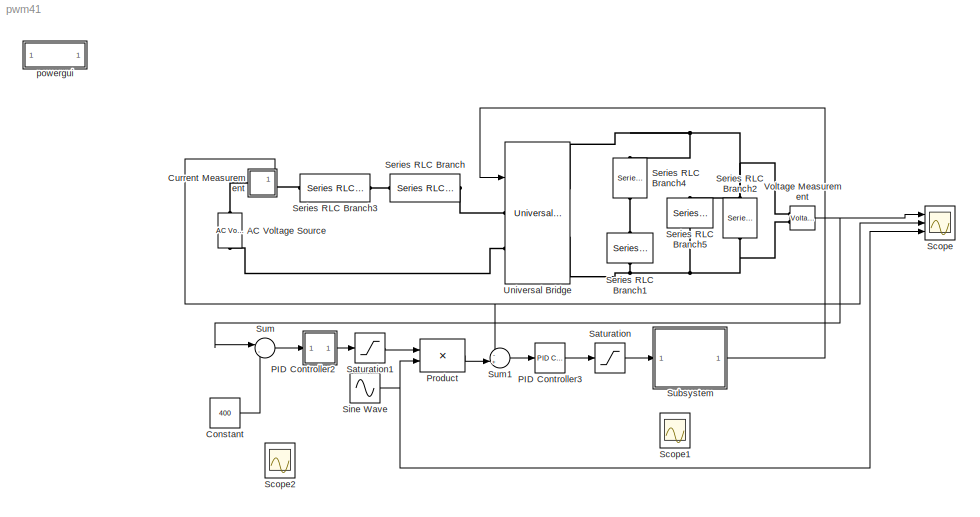
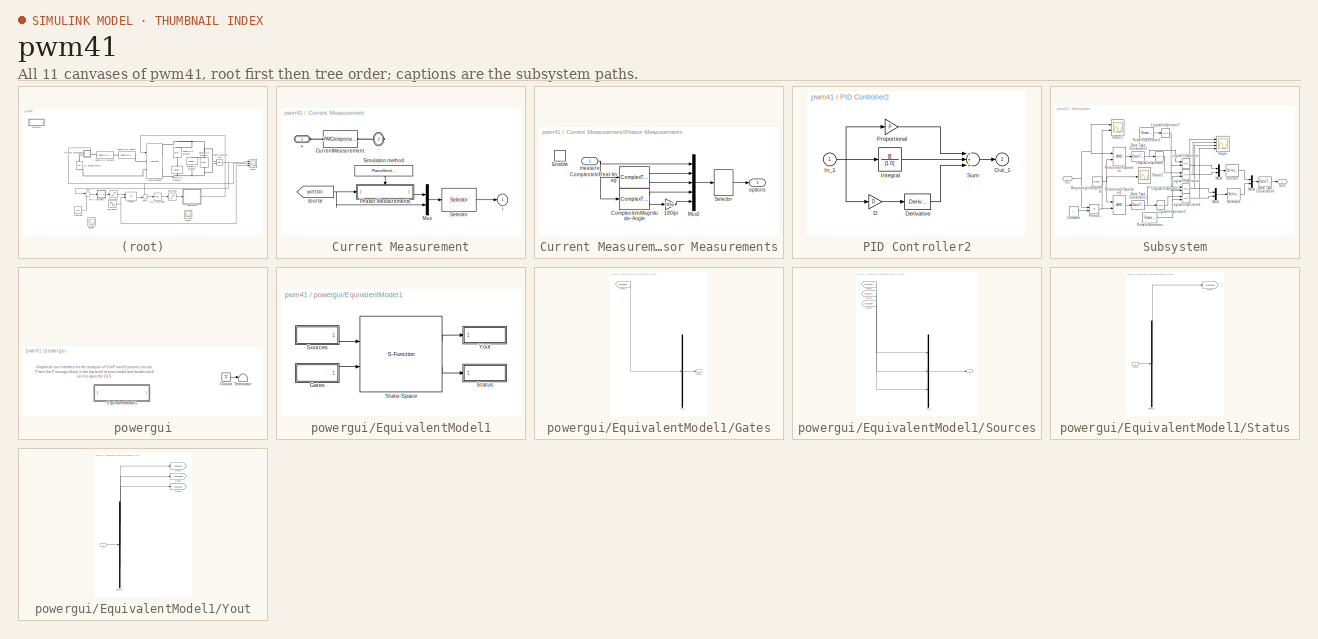
[diagram: thumbnail index - all 11 canvases of the model, root first then tree order]
MODEL pwm41
KIND model
BLOCK [Reference] AC Voltage Source  REF=powerlib/Electrical\nSources/AC Voltage Source
  Amplitude = 311.08
  AttributesFormatString = \\n
  Description = source block
  Frequency = 50
  Measurements = None
  Phase = 0
  Ports = [0, 0, 0, 0, 0, 1, 1]
  SampleTime = 0
  ShowPortLabels = on
  SourceBlock = powerlib/Electrical\nSources/AC Voltage Source
  SourceType = AC Voltage Source
BLOCK [Constant] Constant
  Value = 400
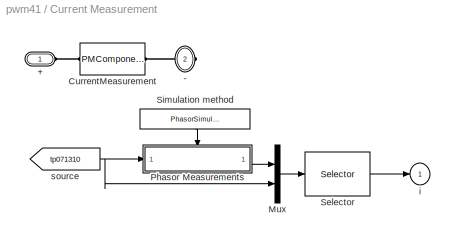
BLOCK [SubSystem] Current Measurement
  AncestorBlock = powerlib/Measurements/Current Measurement
  AttributesFormatString = \\n
  CloseFcn = powericon('psbloadfunction',gcbh,'CloseFcn','');
  CopyFcn = powericon('psbloadfunction',gcbh,'Measurement Block','VerifyPhasor');
  InitFcn = powericon('psbloadfunction',gcbh,'InitFcnOfSPSBlocks','Measurement Block');
  LoadFcn = powericon('psbloadfunction',gcbh,'Measurement Block','');
  MaskCallbackString = ||
  MaskDescription = Ideal current measurement.
  MaskEnableString = off,off,off
  MaskHelp = web(psbhelp);
  MaskHideContents = off
  MaskIconFrame = on
  MaskIconOpaque = off
  MaskIconRotate = port
  MaskIconUnits = autoscale
  MaskInitialization = switch OutputType\ncase 1\n    OutputSelection = 1;\n    NormalMode = 2;\n    PhasorMode = 1;\ncase 2\n    OutputSelection =[2,3];\n    NormalMode = 3;\n    PhasorMode = [1,2];\ncase 3\n    OutputSelection =[4,5];\n    NormalMode = 3;\n    PhasorMode = [1,2];\ncase 4\n    OutputSelection =[4];\n    NormalMode = 2;\n    PhasorMode = 1;\nend\n%\nif PhasorSimulation\n    SelectionMode = PhasorMode;\n...<+42ch>
  MaskPromptString = Phasor simulation|Output signal :|Equivalent circuit
  MaskSelfModifiable = on
  MaskStyleString = checkbox,popup(Complex|Real-Imag|Magnitude-Angle|Magnitude),edit
  MaskTabNameString = ,,
  MaskToolTipString = on,on,on
  MaskTunableValueString = on,on,on
  MaskType = Current Measurement
  MaskValueString = off|Magnitude|0
  MaskVarAliasString = ,,
  MaskVariables = PhasorSimulation=@1;OutputType=@2;PSBequivalent=@3;
  MaskVisibilityString = off,on,off
  MinAlgLoopOccurrences = off
  Ports = [0, 1, 0, 0, 0, 1, 1]
  PreSaveFcn = powericon('psbloadfunction',gcbh,'ModelCloseFcn','');
  RTWSystemCode = Auto
  Tag = PoWeRsYsTeMmEaSuReMeNt
  TreatAsAtomicUnit = off
BLOCK [PMIOPort] Current Measurement/+
  Port = 1
  Side = Left
BLOCK [PMIOPort] Current Measurement/-
  Port = 2
  Side = Right
BLOCK [PMComponent] Current Measurement/CurrentMeasurement
  LConnTagsString = a
  LeftPortType = p1
  MaskIconFrame = on
  MaskIconOpaque = on
  MaskIconRotate = none
  MaskIconUnits = autoscale
  MaskType = InnerPowersysBlock
  PhysicalDomain = powersysdomain
  Ports = [0, 0, 0, 0, 0, 1, 1]
  RConnTagsString = __new0
  RightPortType = p1
BLOCK [Mux] Current Measurement/Mux
  DisplayOption = bar
  Inputs = 2
  Ports = [2, 1]
BLOCK [SubSystem] Current Measurement/Phasor Measurements
  MaskHideContents = off
  MinAlgLoopOccurrences = off
  Ports = [1, 1, 1]
  RTWSystemCode = Auto
  TreatAsAtomicUnit = on
BLOCK [Gain] Current Measurement/Phasor Measurements/180//pi
  Gain = 180/pi
BLOCK [ComplexToMagnitudeAngle] Current Measurement/Phasor Measurements/Complex to\nMagnitude-Angle
  Output = Magnitude and angle
  Ports = [1, 2]
BLOCK [ComplexToRealImag] Current Measurement/Phasor Measurements/Complex to\nReal-Imag
  Output = Real and imag
  Ports = [1, 2]
BLOCK [EnablePort] Current Measurement/Phasor Measurements/Enable
  Ports = []
BLOCK [Mux] Current Measurement/Phasor Measurements/Mux2
  DisplayOption = bar
  Inputs = 5
  Ports = [5, 1]
BLOCK [Selector] Current Measurement/Phasor Measurements/Selector
  Elements = OutputSelection
  InputPortWidth = 5
  Ports = [1, 1]
BLOCK [Inport] Current Measurement/Phasor Measurements/measure
  IconDisplay = Port number
BLOCK [Outport] Current Measurement/Phasor Measurements/options
  BusOutputAsStruct = off
  IconDisplay = Port number
  InitialOutput = 0
BLOCK [Selector] Current Measurement/Selector
  Elements = SelectionMode
  InputPortWidth = length(OutputSelection)+1
  Ports = [1, 1]
BLOCK [Constant] Current Measurement/Simulation method
  Value = PhasorSimulation
BLOCK [Outport] Current Measurement/i
  BusOutputAsStruct = off
  IconDisplay = Port number
  InitialOutput = 0
BLOCK [From] Current Measurement/source
  GotoTag = tp071310
BLOCK [SubSystem] PID Controller2
  AncestorBlock = simulink_extras/Additional\nLinear/PID Controller
  MaskCallbackString = ||
  MaskDescription = Enter expressions for proportional, integral, and derivative terms.\nP+I/s+Ds
  MaskDisplay = disp('PID')
  MaskEnableString = on,on,on
  MaskHelp = This block implements a PID controller where parameters are entered for the Proportional, Integral and Derivative terms. Unmask this block to see how it works. The derivative term is implemented using a true derivative block.
  MaskHideContents = off
  MaskIconFrame = on
  MaskIconOpaque = on
  MaskIconRotate = none
  MaskIconUnits = autoscale
  MaskPromptString = Proportional:|Integral:|Derivative:
  MaskStyleString = edit,edit,edit
  MaskTabNameString = ,,
  MaskToolTipString = on,on,on
  MaskTunableValueString = on,on,on
  MaskType = PID Controller
  MaskValueString = 12|1e-3|0
  MaskVarAliasString = ,,
  MaskVariables = P=@1;I=@2;D=@3;
  MaskVisibilityString = on,on,on
  MinAlgLoopOccurrences = off
  Ports = [1, 1]
  RTWSystemCode = Auto
  TreatAsAtomicUnit = off
BLOCK [Gain] PID Controller2/D
  Gain = D
BLOCK [Derivative] PID Controller2/Derivative
BLOCK [Inport] PID Controller2/In_1
  IconDisplay = Port number
BLOCK [TransferFcn] PID Controller2/Integral
  Denominator = [1 0]
  Numerator = [I]
BLOCK [Outport] PID Controller2/Out_1
  BusOutputAsStruct = off
  IconDisplay = Port number
  InitialOutput = 0
BLOCK [Gain] PID Controller2/Proportional
  Gain = P
BLOCK [Sum] PID Controller2/Sum
  Inputs = +++
  Ports = [3, 1]
BLOCK [Reference] PID Controller3  REF=simulink_extras/Additional\nLinear/PID Controller
  D = 0
  I = 1333
  P = 267
  Ports = [1, 1]
  ShowPortLabels = on
  SourceBlock = simulink_extras/Additional\nLinear/PID Controller
  SourceType = PID Controller
BLOCK [Product] Product
  InputSameDT = off
  Ports = [2, 1]
  RndMeth = Floor
BLOCK [Saturate] Saturation
  LowerLimit = -0.99
  UpperLimit = 0.99
BLOCK [Saturate] Saturation1
  LowerLimit = -100
  UpperLimit = 100
BLOCK [Scope] Scope
  DataFormat = StructureWithTime
  Floating = off
  LimitDataPoints = off
  NumInputPorts = 3
  Ports = [3]
  SampleTime = 0
  YMax = 172.5~4~1
  YMin = 168.5~-9~0.3
  ZoomMode = xonly
BLOCK [Scope] Scope1
  DataFormat = StructureWithTime
  Floating = off
  LimitDataPoints = off
  NumInputPorts = 2
  Ports = [2]
  SampleTime = 0
  SaveName = ScopeData3
  YMax = 1300~110
  YMin = -700~-110
BLOCK [Scope] Scope2
  DataFormat = StructureWithTime
  Floating = off
  LimitDataPoints = off
  NumInputPorts = 2
  Ports = [2]
  SampleTime = 0
  SaveName = ScopeData4
  YMax = 275~375
  YMin = 25~125
BLOCK [Reference] Series RLC Branch  REF=powerlib/Elements/Series RLC Branch
  BranchType = L
  Capacitance = []
  Inductance = 40e-3
  InitialCurrent = 0
  InitialVoltage = 0
  LConnTagsString = __new0
  LeftPortType = p1
  Measurements = None
  PhysicalDomain = powersysdomain
  Ports = [0, 0, 0, 0, 0, 1, 1]
  RConnTagsString = __new0
  Resistance = []
  RightPortType = p1
  SetiL0 = off
  Setx0 = off
  SourceBlock = powerlib/Elements/Series RLC Branch
  SourceType = Series RLC Branch
  SubClassName = unknown
BLOCK [Reference] Series RLC Branch1  REF=powerlib/Elements/Series RLC Branch
  BranchType = C
  Capacitance = 1000e-6
  Inductance = []
  InitialCurrent = 0
  InitialVoltage = 0
  LConnTagsString = __new0
  LeftPortType = p1
  Measurements = None
  PhysicalDomain = powersysdomain
  Ports = [0, 0, 0, 0, 0, 1, 1]
  RConnTagsString = __new0
  Resistance = []
  RightPortType = p1
  SetiL0 = off
  Setx0 = off
  SourceBlock = powerlib/Elements/Series RLC Branch
  SourceType = Series RLC Branch
  SubClassName = unknown
BLOCK [Reference] Series RLC Branch2  REF=powerlib/Elements/Series RLC Branch
  BranchType = R
  Capacitance = []
  Inductance = 0.005
  InitialCurrent = 0
  InitialVoltage = 0
  LConnTagsString = __new0
  LeftPortType = p1
  Measurements = None
  PhysicalDomain = powersysdomain
  Ports = [0, 0, 0, 0, 0, 1, 1]
  RConnTagsString = __new0
  Resistance = 100
  RightPortType = p1
  SetiL0 = off
  Setx0 = off
  SourceBlock = powerlib/Elements/Series RLC Branch
  SourceType = Series RLC Branch
  SubClassName = unknown
BLOCK [Reference] Series RLC Branch3  REF=powerlib/Elements/Series RLC Branch
  BranchType = R
  Capacitance = []
  Inductance = 0.005
  InitialCurrent = 0
  InitialVoltage = 0
  LConnTagsString = __new0
  LeftPortType = p1
  Measurements = None
  PhysicalDomain = powersysdomain
  Ports = [0, 0, 0, 0, 0, 1, 1]
  RConnTagsString = __new0
  Resistance = 0.2
  RightPortType = p1
  SetiL0 = off
  Setx0 = off
  SourceBlock = powerlib/Elements/Series RLC Branch
  SourceType = Series RLC Branch
  SubClassName = unknown
BLOCK [Reference] Series RLC Branch4  REF=powerlib/Elements/Series RLC Branch
  BranchType = L
  Capacitance = []
  Inductance = 2.5e-3
  InitialCurrent = 0
  InitialVoltage = 0
  LConnTagsString = __new0
  LeftPortType = p1
  Measurements = None
  PhysicalDomain = powersysdomain
  Ports = [0, 0, 0, 0, 0, 1, 1]
  RConnTagsString = __new0
  Resistance = 32.8
  RightPortType = p1
  SetiL0 = off
  Setx0 = off
  SourceBlock = powerlib/Elements/Series RLC Branch
  SourceType = Series RLC Branch
  SubClassName = unknown
BLOCK [Reference] Series RLC Branch5  REF=powerlib/Elements/Series RLC Branch
  BranchType = C
  Capacitance = 3000e-6
  Inductance = []
  InitialCurrent = 0
  InitialVoltage = 0
  LConnTagsString = __new0
  LeftPortType = p1
  Measurements = None
  PhysicalDomain = powersysdomain
  Ports = [0, 0, 0, 0, 0, 1, 1]
  RConnTagsString = __new0
  Resistance = []
  RightPortType = p1
  SetiL0 = off
  Setx0 = off
  SourceBlock = powerlib/Elements/Series RLC Branch
  SourceType = Series RLC Branch
  SubClassName = unknown
BLOCK [Sin] Sine Wave
  Frequency = 2*pi*50
  Ports = [0, 1]
  SampleTime = 0
  SineType = Time based
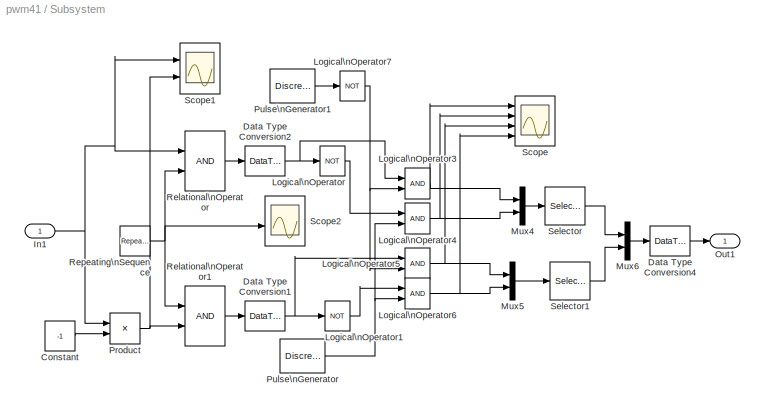
BLOCK [SubSystem] Subsystem
  MaskHideContents = off
  MinAlgLoopOccurrences = off
  Ports = [1, 1]
  RTWSystemCode = Auto
  TreatAsAtomicUnit = off
BLOCK [Constant] Subsystem/Constant
  Value = -1
BLOCK [DataTypeConversion] Subsystem/Data Type Conversion1
  OutDataTypeMode = boolean
BLOCK [DataTypeConversion] Subsystem/Data Type Conversion2
  OutDataTypeMode = boolean
BLOCK [DataTypeConversion] Subsystem/Data Type Conversion4
  OutDataTypeMode = double
BLOCK [Inport] Subsystem/In1
  IconDisplay = Port number
BLOCK [Logic] Subsystem/Logical\nOperator
  AllPortsSameDT = off
  Operator = NOT
  OutDataTypeMode = Specify via dialog
  Ports = [1, 1]
BLOCK [Logic] Subsystem/Logical\nOperator1
  AllPortsSameDT = off
  Operator = NOT
  OutDataTypeMode = Specify via dialog
  Ports = [1, 1]
BLOCK [Logic] Subsystem/Logical\nOperator3
  AllPortsSameDT = off
  OutDataTypeMode = Specify via dialog
  Ports = [2, 1]
BLOCK [Logic] Subsystem/Logical\nOperator4
  AllPortsSameDT = off
  OutDataTypeMode = Specify via dialog
  Ports = [2, 1]
BLOCK [Logic] Subsystem/Logical\nOperator5
  AllPortsSameDT = off
  OutDataTypeMode = Specify via dialog
  Ports = [2, 1]
BLOCK [Logic] Subsystem/Logical\nOperator6
  AllPortsSameDT = off
  OutDataTypeMode = Specify via dialog
  Ports = [2, 1]
BLOCK [Logic] Subsystem/Logical\nOperator7
  AllPortsSameDT = off
  Operator = NOT
  OutDataTypeMode = Specify via dialog
  Ports = [1, 1]
BLOCK [Mux] Subsystem/Mux4
  DisplayOption = bar
  Inputs = 2
  Ports = [2, 1]
BLOCK [Mux] Subsystem/Mux5
  DisplayOption = bar
  Inputs = 2
  Ports = [2, 1]
BLOCK [Mux] Subsystem/Mux6
  DisplayOption = bar
  Inputs = 2
  Ports = [2, 1]
BLOCK [Outport] Subsystem/Out1
  BusOutputAsStruct = off
  IconDisplay = Port number
BLOCK [Product] Subsystem/Product
  InputSameDT = off
  OutDataTypeMode = Inherit via internal rule
  Ports = [2, 1]
  SaturateOnIntegerOverflow = off
BLOCK [DiscretePulseGenerator] Subsystem/Pulse\nGenerator
  Period = 1/20e3
  Ports = [0, 1]
  PulseType = Time based
  PulseWidth = 50
BLOCK [DiscretePulseGenerator] Subsystem/Pulse\nGenerator1
  Period = 1/20e3
  Ports = [0, 1]
  PulseType = Time based
  PulseWidth = 50
BLOCK [RelationalOperator] Subsystem/Relational\nOperator
  InputSameDT = off
BLOCK [RelationalOperator] Subsystem/Relational\nOperator1
  InputSameDT = off
BLOCK [Reference] Subsystem/Repeating\nSequence  REF=simulink/Sources/Repeating\nSequence
  Ports = [0, 1]
  ShowPortLabels = on
  SourceBlock = simulink/Sources/Repeating\nSequence
  SourceType = Repeating table
  rep_seq_t = [0 0.000025 0.00005]
  rep_seq_y = [0 1 0]
BLOCK [Scope] Subsystem/Scope
  DataFormat = StructureWithTime
  Floating = off
  LimitDataPoints = off
  NumInputPorts = 4
  Ports = [4]
  SampleTime = 0
  SaveName = ScopeData1
  YMax = 2~2~2~2
  YMin = -1~-1~-1~-1
  ZoomMode = xonly
BLOCK [Scope] Subsystem/Scope1
  DataFormat = StructureWithTime
  Floating = off
  LimitDataPoints = off
  NumInputPorts = 2
  Ports = [2]
  SampleTime = 0
  SaveName = ScopeData2
  YMax = 2~2
  YMin = -1~-1
  ZoomMode = xonly
BLOCK [Scope] Subsystem/Scope2
  DataFormat = StructureWithTime
  Floating = off
  LimitDataPoints = off
  NumInputPorts = 4
  Ports = [4]
  SampleTime = 0
  SaveName = ScopeData5
  YMax = 2~2~2~2
  YMin = -1~-1~-1~-1
  ZoomMode = xonly
BLOCK [Selector] Subsystem/Selector
  Elements = [1 2]
  InputPortWidth = 2
  Ports = [1, 1]
BLOCK [Selector] Subsystem/Selector1
  Elements = [2 1]
  InputPortWidth = 2
  Ports = [1, 1]
BLOCK [Sum] Sum
  IconShape = round
  InputSameDT = off
  Inputs = |-+
  OutDataTypeMode = Inherit via internal rule
  Ports = [2, 1]
BLOCK [Sum] Sum1
  IconShape = round
  InputSameDT = off
  Inputs = -+|
  OutDataTypeMode = Inherit via internal rule
  Ports = [2, 1]
BLOCK [Reference] Universal Bridge  REF=powerlib/Power\nElectronics/Universal Bridge
  Arms = 2
  AttributesFormatString = \\n
  Device = IGBT / Diodes
  ForwardVoltage = 0
  ForwardVoltages = [1,0.8 ]
  GTOparameters = [ 10e-6 , 20e-6 ]
  IGBTparameters = [ 1e-6 , 2e-6 ]
  Lon = 0
  Measurements = Device currents
  Ports = [1, 0, 0, 0, 0, 2, 2]
  Ron = 0.01
  ShowPortLabels = on
  SnubberCapacitance = 0.001e-6
  SnubberResistance = 10000
  SourceBlock = powerlib/Power\nElectronics/Universal Bridge
  SourceType = Universal Bridge
  converterType = Rectifier
BLOCK [Reference] Voltage Measurement  REF=powerlib/Measurements/Voltage Measurement
  AttributesFormatString = \\n
  OutputType = Magnitude
  PSBequivalent = 0
  PhasorSimulation = off
  Ports = [0, 1, 0, 0, 0, 2]
  ShowPortLabels = on
  SourceBlock = powerlib/Measurements/Voltage Measurement
  SourceType = Voltage Measurement
  Tag = PoWeRsYsTeMmEaSuReMeNt
BLOCK [SubSystem] powergui
  AncestorBlock = powerlib/powergui
  CopyFcn = powergui('Copy_Callback',gcb,0,[]);
  DeleteFcn = powergui('Copy_Callback',gcb,1,[]);powergui('Close_Callback',gcb,[],[]);\n
  MaskCallbackString = ||||||||||||||||||||||||
  MaskDisplay = disp(message)
  MaskEnableString = on,on,on,on,on,on,on,on,on,on,on,on,on,on,on,on,on,on,on,on,on,on,on,on,on
  MaskHelp = web(psbhelp)
  MaskHideContents = off
  MaskIconFrame = on
  MaskIconOpaque = on
  MaskIconRotate = none
  MaskIconUnits = autoscale
  MaskInitialization = powerlibroot = which('powersysdomain');\nPSBroot = powerlibroot(1:end-16);\n%\nswitch SimulationMode\n	case 1\n		message=sprintf('Continuous');\n	case 2\n        message=sprintf('Discrete,\\nTs = %.4g s.',SampleTime);\n	case 3\n		message=sprintf('Phasors');\nend\nif strcmp(bdroot,'powerlib')\n  message='powergui';\nend\npower_initmask();
  MaskPromptString = General parameter: Simulation Mode |General parameter: Sample Time|General parameter: Echo  Messages|Initial electrical states status|Impedance tool: Frequency Range|Impedance tool: Log impedance|Impedance tool: log Frequency|Impedance tool: grid|Impedance tool: Save Data To Workspace|Impedance tool: Variable Name|Structure Name (PSBFFTSCOPE)|ZoomFFT (PSBFFTSCOPE)|Start Time (PSBFFTSCOPE)|Cycles (...<+301ch>
  MaskSelfModifiable = on
  MaskStyleString = popup(Continuous|Discrete|Phasor),edit,checkbox,popup(blocks|steady|zero),edit,checkbox,checkbox,checkbox,checkbox,edit,edit,checkbox,edit,edit,edit,edit,checkbox,edit,edit,edit,edit,checkbox,edit,edit,checkbox
  MaskTabNameString = ,,,,,,,,,,,,,,,,,,,,,,,,
  MaskToolTipString = on,on,on,on,on,on,on,on,on,on,on,on,on,on,on,on,on,on,on,on,on,on,on,on,on
  MaskTunableValueString = on,on,on,on,on,on,on,on,on,on,on,on,on,on,on,on,on,on,on,on,on,on,on,on,on
  MaskType = PSB option menu block
  MaskValueString = Continuous|0|off|blocks|[0:2:500]|off|on|off|off|ZData||on|0.0|1|1|60|off|1000|1|1|1|off|0|60|off
  MaskVarAliasString = ,,,,,,,,,,,,,,,,,,,,,,,,
  MaskVariables = SimulationMode=@1;SampleTime=@2;echomessages=@3;x0status=@4;Frange=@5;Ylog=@6;Xlog=@7;ShowGrid=@8;save=@9;variable=&10;structure=&11;ZoomFFT=@12;StartTime=@13;cycles=@14;DisplayStyle=&15;fundamental=@16;FreqAxis=@17;MaxFrequency=@18;frequencyindice=@19;frequencyindicesteady=@20;RmsSteady=@21;display=@22;Ts=@23;frequency=@24;methode=@25;
  MaskVisibilityString = on,on,on,on,off,off,off,off,off,off,off,off,off,off,off,off,off,off,off,off,off,on,on,on,on
  MinAlgLoopOccurrences = off
  ModelCloseFcn = powergui('Close_Callback',gcb,[],[]);
  NameChangeFcn = handles = get_param(gcb,'UserData');if ~isempty(handles);delete(handles.powergui);end
  OpenFcn = if (power_openblockproxy ('secondary'))\npowergui(gcb,'PM')\nend;
  Ports = []
  PreSaveFcn = try                              \nclose(get_param(gcbh,'userdata'))\nend
  RTWSystemCode = Auto
  TreatAsAtomicUnit = off
BLOCK [SubSystem] powergui/EquivalentModel1
  MaskDisplay = color('blue')\ndisp('EQUIVALENT CIRCUIT')
  MaskHideContents = off
  MaskIconFrame = on
  MaskIconOpaque = on
  MaskIconRotate = none
  MaskIconUnits = autoscale
  MaskInitialization = SPS = get_param(gcbh,'UserData');\nif isempty(SPS)\n    A=0;\n    B=0;\n    C=0;\n    D=0;\n    x0=0;\n    SwitchResistance=1;\n    SwitchType=1;\n    SwitchGateInitialValue=1;\n    OutputsToResetToZero=1;\nelse\n	A=SPS.A;\n    B=SPS.B;\n    C=SPS.C;\n    D=SPS.D;\n    x0=SPS.x0;\n    SwitchResistance=SPS.SwitchResistance;\n    SwitchType=SPS.SwitchType;\n    SwitchGateInitialValue=SPS.SwitchGateI...<+63ch>
  MinAlgLoopOccurrences = off
  Ports = []
  RTWSystemCode = Auto
  TreatAsAtomicUnit = off
BLOCK [SubSystem] powergui/EquivalentModel1/Gates
  MaskHideContents = off
  MinAlgLoopOccurrences = off
  Ports = [0, 1]
  RTWSystemCode = Auto
  TreatAsAtomicUnit = off
BLOCK [From] powergui/EquivalentModel1/Gates/From1
  GotoTag = tp071923
BLOCK [Mux] powergui/EquivalentModel1/Gates/Mux
  DisplayOption = bar
  Inputs = 1
  Ports = [1, 1]
BLOCK [Outport] powergui/EquivalentModel1/Gates/gates
  BusOutputAsStruct = off
  IconDisplay = Port number
BLOCK [SubSystem] powergui/EquivalentModel1/Sources
  MaskHideContents = off
  MinAlgLoopOccurrences = off
  Ports = [0, 1]
  RTWSystemCode = Auto
  TreatAsAtomicUnit = off
BLOCK [From] powergui/EquivalentModel1/Sources/From1
  GotoTag = tp071910
BLOCK [From] powergui/EquivalentModel1/Sources/From2
  GotoTag = tp071971
BLOCK [From] powergui/EquivalentModel1/Sources/From3
  GotoTag = tp071909
BLOCK [Mux] powergui/EquivalentModel1/Sources/Mux
  DisplayOption = bar
  Inputs = [4 1 4]
  Ports = [3, 1]
BLOCK [Outport] powergui/EquivalentModel1/Sources/u
  BusOutputAsStruct = off
  IconDisplay = Port number
BLOCK [S-Function] powergui/EquivalentModel1/State-Space
  FunctionName = sfun_spssw_contc
  MaskIconFrame = on
  MaskIconOpaque = on
  MaskIconRotate = none
  MaskIconUnits = autoscale
  Parameters = A, B, C, D, x0, SwitchResistance ,SwitchType, SwitchGateInitialValue, OutputsToResetToZero
  Ports = [2, 2]
BLOCK [SubSystem] powergui/EquivalentModel1/Status
  MaskHideContents = off
  MinAlgLoopOccurrences = off
  Ports = [1]
  RTWSystemCode = Auto
  TreatAsAtomicUnit = off
BLOCK [Demux] powergui/EquivalentModel1/Status/Demux
  DisplayOption = bar
  Outputs = 1
  Ports = [1, 1]
BLOCK [Goto] powergui/EquivalentModel1/Status/Goto1
  GotoTag = tp071925
  TagVisibility = global
BLOCK [Inport] powergui/EquivalentModel1/Status/status
  IconDisplay = Port number
BLOCK [SubSystem] powergui/EquivalentModel1/Yout
  MaskHideContents = off
  MinAlgLoopOccurrences = off
  Ports = [1]
  RTWSystemCode = Auto
  TreatAsAtomicUnit = off
BLOCK [Demux] powergui/EquivalentModel1/Yout/Demux
  DisplayOption = bar
  Outputs = [4 1 1]
  Ports = [1, 3]
BLOCK [Goto] powergui/EquivalentModel1/Yout/Goto1
  GotoTag = tp071921
  TagVisibility = global
BLOCK [Goto] powergui/EquivalentModel1/Yout/Goto2
  GotoTag = tp071556
  TagVisibility = global
BLOCK [Goto] powergui/EquivalentModel1/Yout/Goto3
  GotoTag = tp071310
  TagVisibility = global
BLOCK [Inport] powergui/EquivalentModel1/Yout/v,i
  IconDisplay = Port number
BLOCK [Ground] powergui/Ground
BLOCK [Terminator] powergui/Terminator
ANNOTATION powergui: Graphical user interface for the analysis of SimPowerSystems circuits. \nPlace the Powergui block in the top-level of your model and double-click\non it to open the GUI.
LINE Constant:1 -> Sum:2
LINE Current Measurement/Mux:1 -> Current Measurement/Selector:1
LINE Current Measurement/Phasor Measurements/180//pi:1 -> Current Measurement/Phasor Measurements/Mux2:5
LINE Current Measurement/Phasor Measurements/Complex to\nMagnitude-Angle:1 -> Current Measurement/Phasor Measurements/Mux2:4
LINE Current Measurement/Phasor Measurements/Complex to\nMagnitude-Angle:2 -> Current Measurement/Phasor Measurements/180//pi:1
LINE Current Measurement/Phasor Measurements/Complex to\nReal-Imag:1 -> Current Measurement/Phasor Measurements/Mux2:2
LINE Current Measurement/Phasor Measurements/Complex to\nReal-Imag:2 -> Current Measurement/Phasor Measurements/Mux2:3
LINE Current Measurement/Phasor Measurements/Mux2:1 -> Current Measurement/Phasor Measurements/Selector:1
LINE Current Measurement/Phasor Measurements/Selector:1 -> Current Measurement/Phasor Measurements/options:1
NET Current Measurement/Phasor Measurements/measure:1 -> Current Measurement/Phasor Measurements/Complex to\nMagnitude-Angle:1, Current Measurement/Phasor Measurements/Complex to\nReal-Imag:1, Current Measurement/Phasor Measurements/Mux2:1
LINE Current Measurement/Phasor Measurements:1 -> Current Measurement/Mux:1
LINE Current Measurement/Selector:1 -> Current Measurement/i:1
LINE Current Measurement/Simulation method:1 -> Current Measurement/Phasor Measurements:enable
NET Current Measurement/source:1 -> Current Measurement/Mux:2, Current Measurement/Phasor Measurements:1
NET Current Measurement:1 -> Scope:2, Sum1:1
LINE PID Controller2/D:1 -> PID Controller2/Derivative:1
LINE PID Controller2/Derivative:1 -> PID Controller2/Sum:3
NET PID Controller2/In_1:1 -> PID Controller2/D:1, PID Controller2/Integral:1, PID Controller2/Proportional:1
LINE PID Controller2/Integral:1 -> PID Controller2/Sum:2
LINE PID Controller2/Proportional:1 -> PID Controller2/Sum:1
LINE PID Controller2/Sum:1 -> PID Controller2/Out_1:1
LINE PID Controller2:1 -> Saturation1:1
LINE PID Controller3:1 -> Saturation:1
LINE Product:1 -> Sum1:2
LINE Saturation1:1 -> Product:1
LINE Saturation:1 -> Subsystem:1
NET Sine Wave:1 -> Product:2, Scope:3
LINE Subsystem/Constant:1 -> Subsystem/Product:2
NET Subsystem/Data Type Conversion1:1 -> Subsystem/Logical\nOperator1:1, Subsystem/Logical\nOperator5:1
NET Subsystem/Data Type Conversion2:1 -> Subsystem/Logical\nOperator3:1, Subsystem/Logical\nOperator:1
LINE Subsystem/Data Type Conversion4:1 -> Subsystem/Out1:1
NET Subsystem/In1:1 -> Subsystem/Product:1, Subsystem/Relational\nOperator:1, Subsystem/Scope1:1
LINE Subsystem/Logical\nOperator1:1 -> Subsystem/Logical\nOperator6:1
NET Subsystem/Logical\nOperator3:1 -> Subsystem/Mux4:1, Subsystem/Scope:1
NET Subsystem/Logical\nOperator4:1 -> Subsystem/Mux4:2, Subsystem/Scope:2
NET Subsystem/Logical\nOperator5:1 -> Subsystem/Mux5:1, Subsystem/Scope:3
NET Subsystem/Logical\nOperator6:1 -> Subsystem/Mux5:2, Subsystem/Scope:4
NET Subsystem/Logical\nOperator7:1 -> Subsystem/Logical\nOperator3:2, Subsystem/Logical\nOperator5:2
LINE Subsystem/Logical\nOperator:1 -> Subsystem/Logical\nOperator4:1
LINE Subsystem/Mux4:1 -> Subsystem/Selector:1
LINE Subsystem/Mux5:1 -> Subsystem/Selector1:1
LINE Subsystem/Mux6:1 -> Subsystem/Data Type Conversion4:1
NET Subsystem/Product:1 -> Subsystem/Relational\nOperator1:2, Subsystem/Scope1:2
LINE Subsystem/Pulse\nGenerator1:1 -> Subsystem/Logical\nOperator7:1
NET Subsystem/Pulse\nGenerator:1 -> Subsystem/Logical\nOperator4:2, Subsystem/Logical\nOperator6:2
LINE Subsystem/Relational\nOperator1:1 -> Subsystem/Data Type Conversion1:1
LINE Subsystem/Relational\nOperator:1 -> Subsystem/Data Type Conversion2:1
NET Subsystem/Repeating\nSequence:1 -> Subsystem/Relational\nOperator1:1, Subsystem/Relational\nOperator:2, Subsystem/Scope2:3
LINE Subsystem/Selector1:1 -> Subsystem/Mux6:2
LINE Subsystem/Selector:1 -> Subsystem/Mux6:1
LINE Subsystem:1 -> Universal Bridge:1
LINE Sum1:1 -> PID Controller3:1
LINE Sum:1 -> PID Controller2:1
NET Voltage Measurement:1 -> Scope:1, Sum:1
LINE powergui/EquivalentModel1/Gates/From1:1 -> powergui/EquivalentModel1/Gates/Mux:1
LINE powergui/EquivalentModel1/Gates/Mux:1 -> powergui/EquivalentModel1/Gates/gates:1
LINE powergui/EquivalentModel1/Gates:1 -> powergui/EquivalentModel1/State-Space:2
LINE powergui/EquivalentModel1/Sources/From1:1 -> powergui/EquivalentModel1/Sources/Mux:1
LINE powergui/EquivalentModel1/Sources/From2:1 -> powergui/EquivalentModel1/Sources/Mux:2
LINE powergui/EquivalentModel1/Sources/From3:1 -> powergui/EquivalentModel1/Sources/Mux:3
LINE powergui/EquivalentModel1/Sources/Mux:1 -> powergui/EquivalentModel1/Sources/u:1
LINE powergui/EquivalentModel1/Sources:1 -> powergui/EquivalentModel1/State-Space:1
LINE powergui/EquivalentModel1/State-Space:1 -> powergui/EquivalentModel1/Yout:1
LINE powergui/EquivalentModel1/State-Space:2 -> powergui/EquivalentModel1/Status:1
LINE powergui/EquivalentModel1/Status/Demux:1 -> powergui/EquivalentModel1/Status/Goto1:1
LINE powergui/EquivalentModel1/Status/status:1 -> powergui/EquivalentModel1/Status/Demux:1
LINE powergui/EquivalentModel1/Yout/Demux:1 -> powergui/EquivalentModel1/Yout/Goto1:1
LINE powergui/EquivalentModel1/Yout/Demux:2 -> powergui/EquivalentModel1/Yout/Goto2:1
LINE powergui/EquivalentModel1/Yout/Demux:3 -> powergui/EquivalentModel1/Yout/Goto3:1
LINE powergui/EquivalentModel1/Yout/v,i:1 -> powergui/EquivalentModel1/Yout/Demux:1
LINE powergui/Ground:1 -> powergui/Terminator:1
PLINE AC Voltage Source:LConn1 -- Universal Bridge:LConn2
PLINE AC Voltage Source:RConn1 -- Current Measurement:LConn1
PLINE Current Measurement/+:RConn1 -- Current Measurement/CurrentMeasurement:LConn1
PLINE Current Measurement/-:RConn1 -- Current Measurement/CurrentMeasurement:RConn1
PLINE Current Measurement:RConn1 -- Series RLC Branch3:LConn1
PLINE Series RLC Branch1:LConn1 -- Series RLC Branch4:RConn1
PNET net1: Series RLC Branch1:RConn1 -- Series RLC Branch2:RConn1 -- Series RLC Branch5:RConn1 -- Universal Bridge:RConn2 -- Voltage Measurement:LConn2
PNET net2: Series RLC Branch2:LConn1 -- Series RLC Branch4:LConn1 -- Series RLC Branch5:LConn1 -- Universal Bridge:RConn1 -- Voltage Measurement:LConn1
PLINE Series RLC Branch3:RConn1 -- Series RLC Branch:LConn1
PLINE Series RLC Branch:RConn1 -- Universal Bridge:LConn1
note: NET lines group one-source signal fan-out (src -> all destinations, sorted); 1:1 wires keep LINE; PNET lines group multi-terminal physical nets as a canonical sorted terminal list (undirected conserving connections); 2-terminal nets keep the pairwise PLINE form
